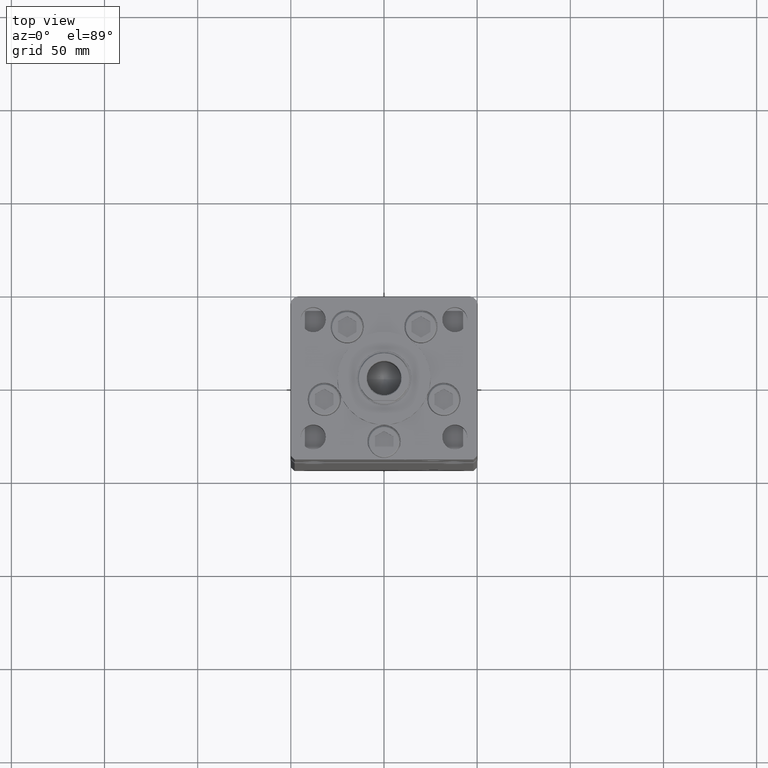
[diagram: clean part render]
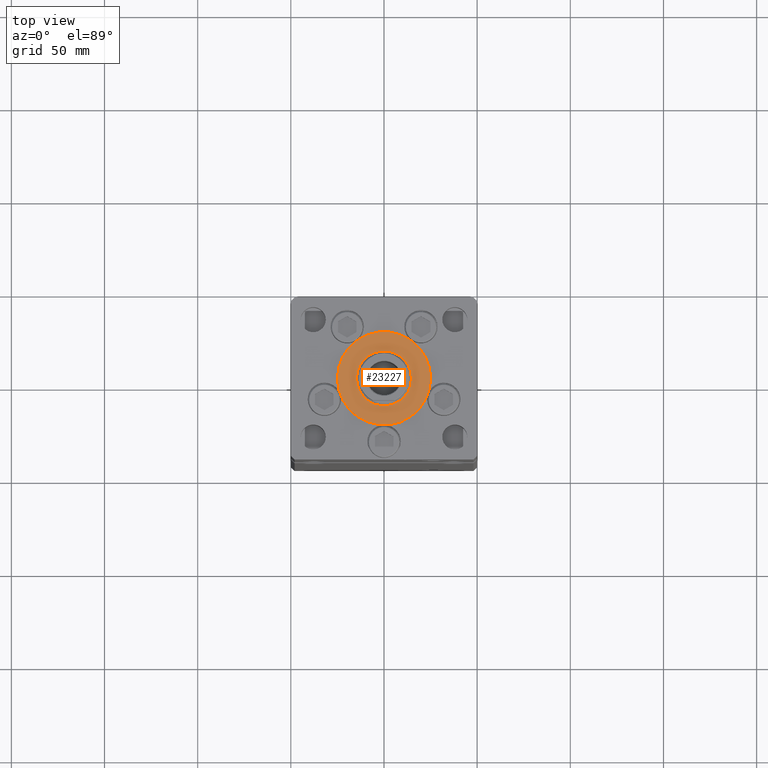
[diagram: same view with one face highlighted and labeled with its STEP entity id]
A machine part, top view. The second image highlights one B-rep face of the part: STEP entity #23227.
In plain terms, the highlighted planar face has unit normal (0, 0, 1).
Its self-contained STEP definition (entity closure, byte-faithful):
#1322 = CARTESIAN_POINT ( 'NONE',  ( 25.00000000000000000, -3.877276906038844941E-15, 2.000000000000000000 ) ) ;
#2114 = EDGE_CURVE ( 'NONE', #28857, #44232, #14581, .T. ) ;
#3217 = CARTESIAN_POINT ( 'NONE',  ( -25.00000000000000000, -6.938893903907228378E-15, 2.000000000000000000 ) ) ;
#4319 = AXIS2_PLACEMENT_3D ( 'NONE', #36477, #52067, #52864 ) ;
#5494 = DIRECTION ( 'NONE',  ( 0.000000000000000000, 0.000000000000000000, 1.000000000000000000 ) ) ;
#6465 = DIRECTION ( 'NONE',  ( 1.000000000000000000, 0.000000000000000000, 0.000000000000000000 ) ) ;
#8980 = EDGE_CURVE ( 'NONE', #44232, #28857, #15667, .T. ) ;
#10061 = VERTEX_POINT ( 'NONE', #1322 ) ;
#10322 = DIRECTION ( 'NONE',  ( 0.000000000000000000, 0.000000000000000000, 1.000000000000000000 ) ) ;
#11270 = CARTESIAN_POINT ( 'NONE',  ( -14.75000000000000178, -5.132539875164881787E-15, 2.000000000000000000 ) ) ;
#14077 = FACE_OUTER_BOUND ( 'NONE', #48459, .T. ) ;
#14581 = CIRCLE ( 'NONE', #4319, 14.75000000000000178 ) ;
#14616 = DIRECTION ( 'NONE',  ( 1.000000000000000000, 0.000000000000000000, 0.000000000000000000 ) ) ;
#14877 = CARTESIAN_POINT ( 'NONE',  ( 0.000000000000000000, -6.938893903907228378E-15, 2.000000000000000000 ) ) ;
#15667 = CIRCLE ( 'NONE', #22558, 14.75000000000000178 ) ;
#15861 = DIRECTION ( 'NONE',  ( 1.000000000000000000, 0.000000000000000000, 0.000000000000000000 ) ) ;
#17012 = CIRCLE ( 'NONE', #18730, 25.00000000000000000 ) ;
#18730 = AXIS2_PLACEMENT_3D ( 'NONE', #14877, #10322, #14616 ) ;
#19113 = ORIENTED_EDGE ( 'NONE', *, *, #24509, .T. ) ;
#22558 = AXIS2_PLACEMENT_3D ( 'NONE', #29232, #39511, #6465 ) ;
#22673 = DIRECTION ( 'NONE',  ( 1.000000000000000000, 0.000000000000000000, -0.000000000000000000 ) ) ;
#23227 = ADVANCED_FACE ( 'NONE', ( #42301, #14077 ), #51427, .T. ) ;
#23427 = ORIENTED_EDGE ( 'NONE', *, *, #34192, .T. ) ;
#23945 = ORIENTED_EDGE ( 'NONE', *, *, #8980, .F. ) ;
#24509 = EDGE_CURVE ( 'NONE', #10061, #52362, #29724, .T. ) ;
#27103 = AXIS2_PLACEMENT_3D ( 'NONE', #30486, #5494, #22673 ) ;
#28857 = VERTEX_POINT ( 'NONE', #11270 ) ;
#29232 = CARTESIAN_POINT ( 'NONE',  ( 0.000000000000000000, -6.938893903907228378E-15, 2.000000000000000000 ) ) ;
#29724 = CIRCLE ( 'NONE', #43441, 25.00000000000000000 ) ;
#30486 = CARTESIAN_POINT ( 'NONE',  ( 0.000000000000000000, -6.938893903907228378E-15, 2.000000000000000000 ) ) ;
#34192 = EDGE_CURVE ( 'NONE', #52362, #10061, #17012, .T. ) ;
#35764 = DIRECTION ( 'NONE',  ( 0.000000000000000000, 0.000000000000000000, 1.000000000000000000 ) ) ;
#36477 = CARTESIAN_POINT ( 'NONE',  ( 0.000000000000000000, -6.938893903907228378E-15, 2.000000000000000000 ) ) ;
#39511 = DIRECTION ( 'NONE',  ( 0.000000000000000000, 0.000000000000000000, 1.000000000000000000 ) ) ;
#42301 = FACE_BOUND ( 'NONE', #42486, .T. ) ;
#42486 = EDGE_LOOP ( 'NONE', ( #23945, #43018 ) ) ;
#43018 = ORIENTED_EDGE ( 'NONE', *, *, #2114, .F. ) ;
#43067 = CARTESIAN_POINT ( 'NONE',  ( 14.75000000000000178, -6.938893903907228378E-15, 2.000000000000000000 ) ) ;
#43441 = AXIS2_PLACEMENT_3D ( 'NONE', #44628, #35764, #15861 ) ;
#44232 = VERTEX_POINT ( 'NONE', #43067 ) ;
#44628 = CARTESIAN_POINT ( 'NONE',  ( 0.000000000000000000, -6.938893903907228378E-15, 2.000000000000000000 ) ) ;
#48459 = EDGE_LOOP ( 'NONE', ( #23427, #19113 ) ) ;
#51427 = PLANE ( 'NONE',  #27103 ) ;
#52067 = DIRECTION ( 'NONE',  ( 0.000000000000000000, 0.000000000000000000, 1.000000000000000000 ) ) ;
#52362 = VERTEX_POINT ( 'NONE', #3217 ) ;
#52864 = DIRECTION ( 'NONE',  ( 1.000000000000000000, 0.000000000000000000, 0.000000000000000000 ) ) ;